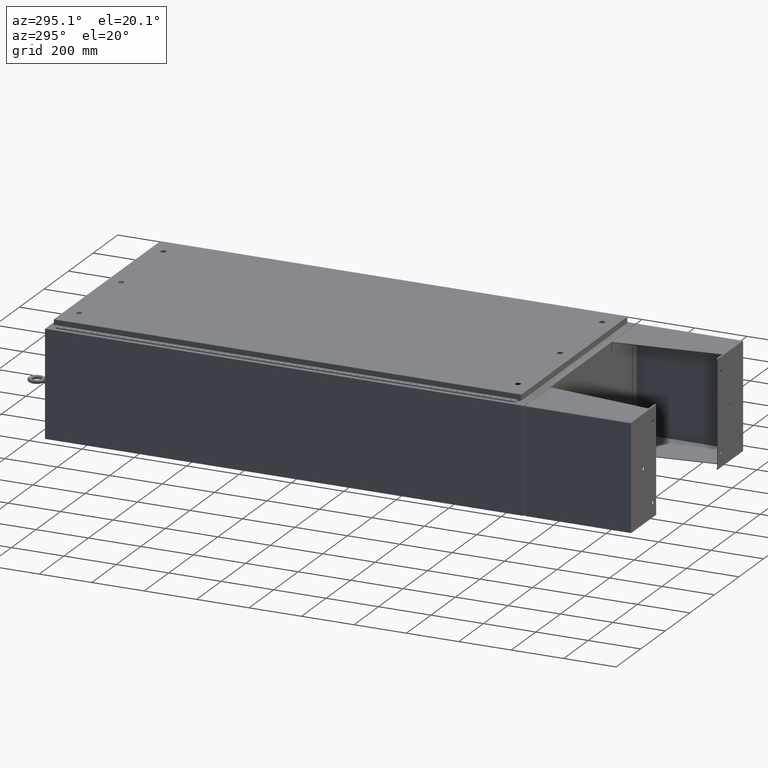
[diagram: clean part render]
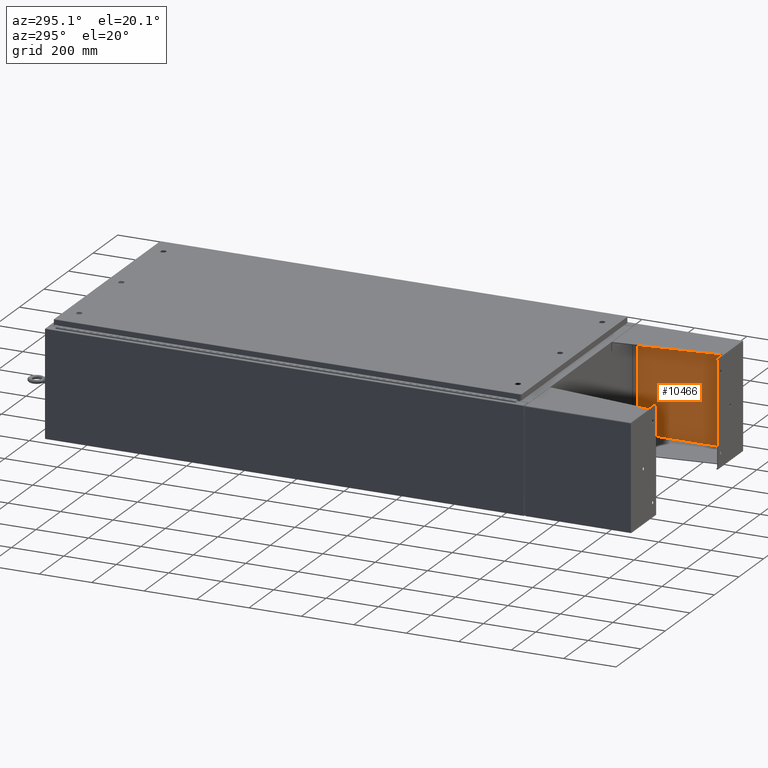
[diagram: same view with one face highlighted and labeled with its STEP entity id]
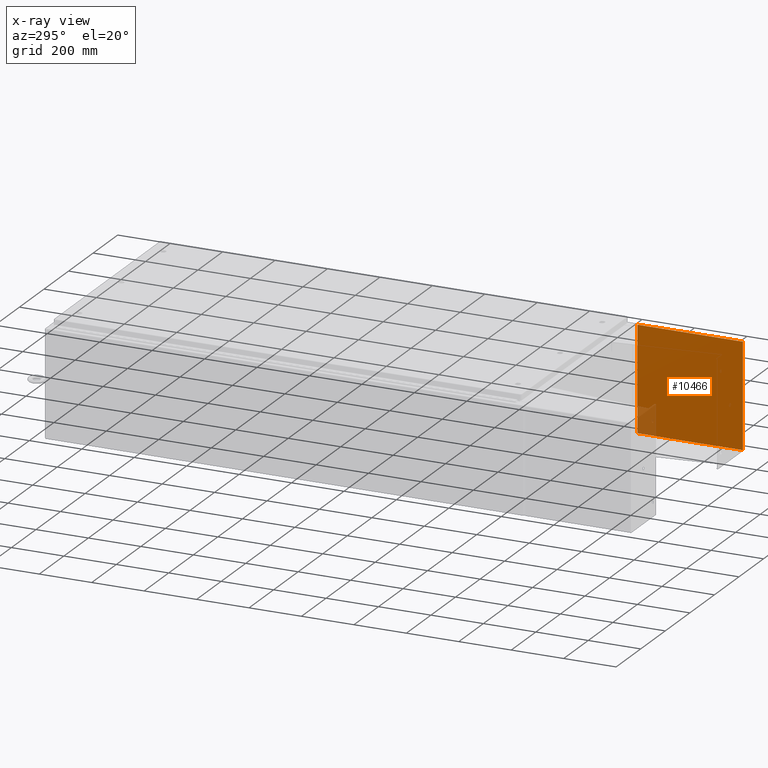
[diagram: x-ray of the same camera — body ghosted, the highlighted face saturated]
A machine part, auxiliary view. The second image highlights one B-rep face of the part: STEP entity #10466.
The next image is the same camera in x-ray: the body ghosted, the highlighted face saturated — about 5% of this face is hidden behind the body in this view.
In plain terms, the highlighted planar face has unit normal (1, 0, -0).
Its self-contained STEP definition (entity closure, byte-faithful):
#4279 = LINE ( 'NONE', #26074, #42755 ) ;
#4929 = EDGE_CURVE ( 'NONE', #9536, #30544, #65235, .T. ) ;
#9300 = CARTESIAN_POINT ( 'NONE',  ( 8.000000000000001800, 8.000000000000001800, 0.0000000000000000000 ) ) ;
#9536 = VERTEX_POINT ( 'NONE', #29211 ) ;
#10466 = ADVANCED_FACE ( 'NONE', ( #53121 ), #41527, .F. ) ;
#12388 = EDGE_CURVE ( 'NONE', #21509, #30544, #69953, .T. ) ;
#15261 = DIRECTION ( 'NONE',  ( 0.0000000000000000000, 0.0000000000000000000, -1.000000000000000000 ) ) ;
#15830 = CARTESIAN_POINT ( 'NONE',  ( -7.999999999999997300, -7.999999999999999100, 0.0000000000000000000 ) ) ;
#18189 = DIRECTION ( 'NONE',  ( -1.000000000000000000, 0.0000000000000000000, -0.0000000000000000000 ) ) ;
#19732 = ORIENTED_EDGE ( 'NONE', *, *, #21017, .F. ) ;
#21017 = EDGE_CURVE ( 'NONE', #60851, #21509, #4279, .T. ) ;
#21143 = ORIENTED_EDGE ( 'NONE', *, *, #12388, .F. ) ;
#21509 = VERTEX_POINT ( 'NONE', #48182 ) ;
#22811 = ORIENTED_EDGE ( 'NONE', *, *, #4929, .T. ) ;
#24205 = DIRECTION ( 'NONE',  ( 1.000000000000000000, 0.0000000000000000000, 0.0000000000000000000 ) ) ;
#24743 = LINE ( 'NONE', #62252, #64849 ) ;
#26074 = CARTESIAN_POINT ( 'NONE',  ( -7.856999999999996700, 7.857000000000001100, 1.365923996832131600E-016 ) ) ;
#29211 = CARTESIAN_POINT ( 'NONE',  ( -7.856999999999997500, -8.000000000000000000, 1.365923996832131600E-016 ) ) ;
#30472 = EDGE_LOOP ( 'NONE', ( #19732, #57736, #22811, #21143 ) ) ;
#30544 = VERTEX_POINT ( 'NONE', #50576 ) ;
#40973 = VECTOR ( 'NONE', #41711, 39.37007874015748100 ) ;
#41527 = PLANE ( 'NONE',  #41916 ) ;
#41711 = DIRECTION ( 'NONE',  ( -0.0000000000000000000, -1.000000000000000000, -0.0000000000000000000 ) ) ;
#41916 = AXIS2_PLACEMENT_3D ( 'NONE', #9300, #15261, #18189 ) ;
#42755 = VECTOR ( 'NONE', #47193, 39.37007874015748100 ) ;
#47193 = DIRECTION ( 'NONE',  ( 1.000000000000000000, 0.0000000000000000000, 0.0000000000000000000 ) ) ;
#48182 = CARTESIAN_POINT ( 'NONE',  ( 7.857000000000001100, 7.857000000000001100, 1.365923996832131600E-016 ) ) ;
#50576 = CARTESIAN_POINT ( 'NONE',  ( 7.857000000000001100, -7.999999999999997300, 1.365923996832131600E-016 ) ) ;
#51137 = EDGE_CURVE ( 'NONE', #9536, #60851, #24743, .T. ) ;
#53121 = FACE_OUTER_BOUND ( 'NONE', #30472, .T. ) ;
#57736 = ORIENTED_EDGE ( 'NONE', *, *, #51137, .F. ) ;
#60727 = CARTESIAN_POINT ( 'NONE',  ( -7.856999999999996700, 7.857000000000001100, 1.365923996832131600E-016 ) ) ;
#60851 = VERTEX_POINT ( 'NONE', #60727 ) ;
#61821 = VECTOR ( 'NONE', #24205, 39.37007874015748100 ) ;
#62252 = CARTESIAN_POINT ( 'NONE',  ( -7.856999999999997500, -7.999999999999999100, 1.365923996832131600E-016 ) ) ;
#64849 = VECTOR ( 'NONE', #67766, 39.37007874015748100 ) ;
#65203 = CARTESIAN_POINT ( 'NONE',  ( 7.857000000000001100, 8.000000000000001800, 1.365923996832131600E-016 ) ) ;
#65235 = LINE ( 'NONE', #15830, #61821 ) ;
#67766 = DIRECTION ( 'NONE',  ( -0.0000000000000000000, 1.000000000000000000, -0.0000000000000000000 ) ) ;
#69953 = LINE ( 'NONE', #65203, #40973 ) ;